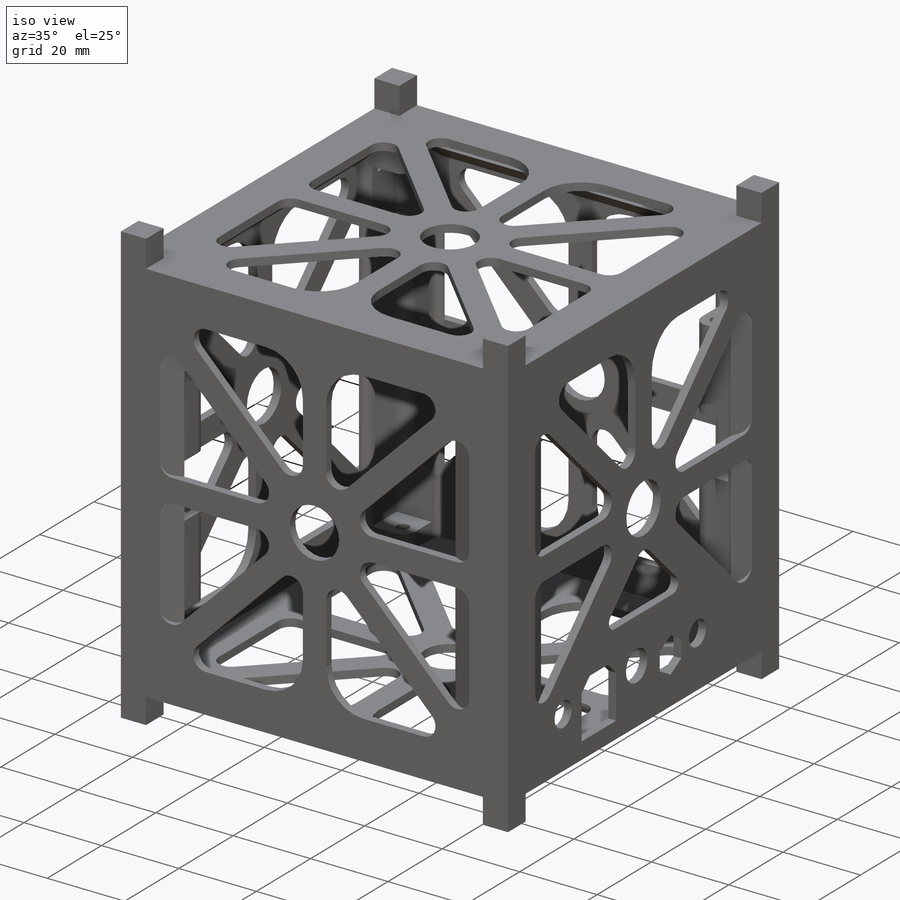
[diagram: iso view]
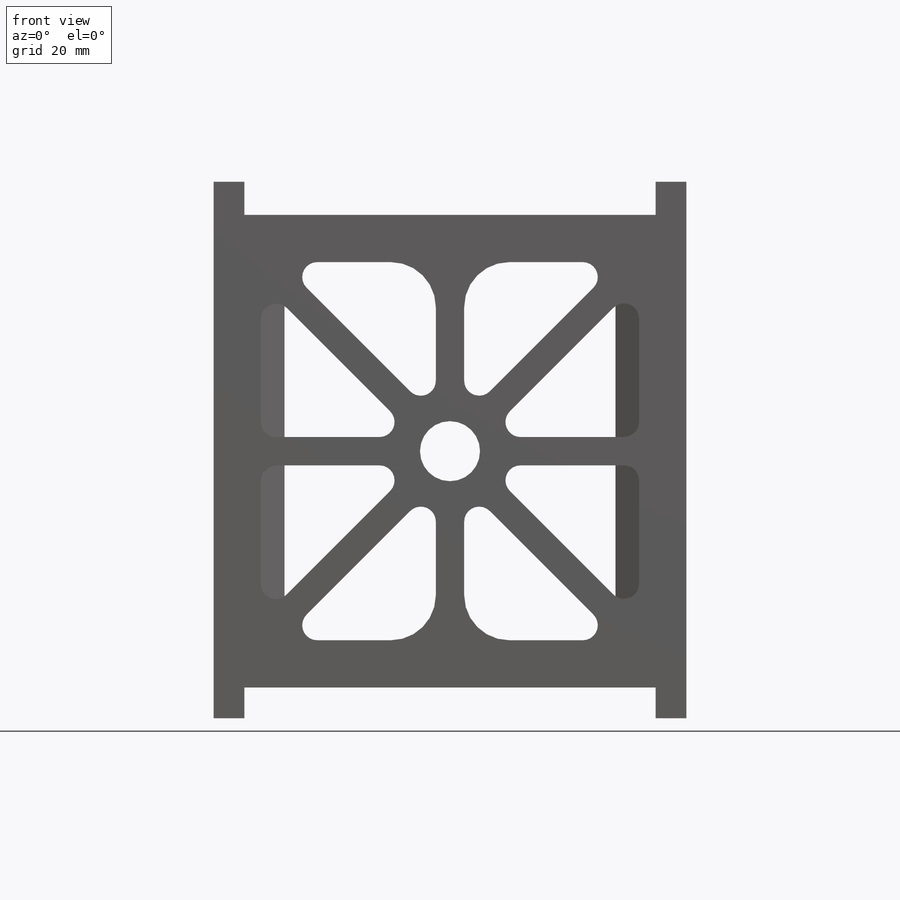
[diagram: front view]
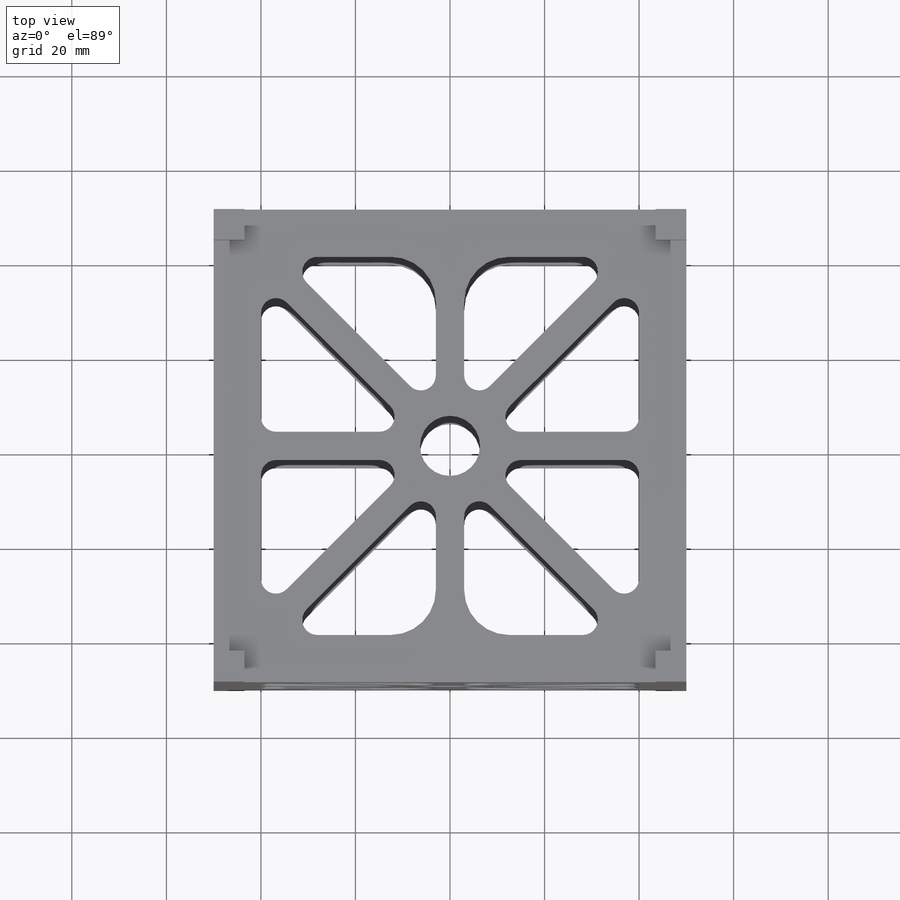
[diagram: top view]
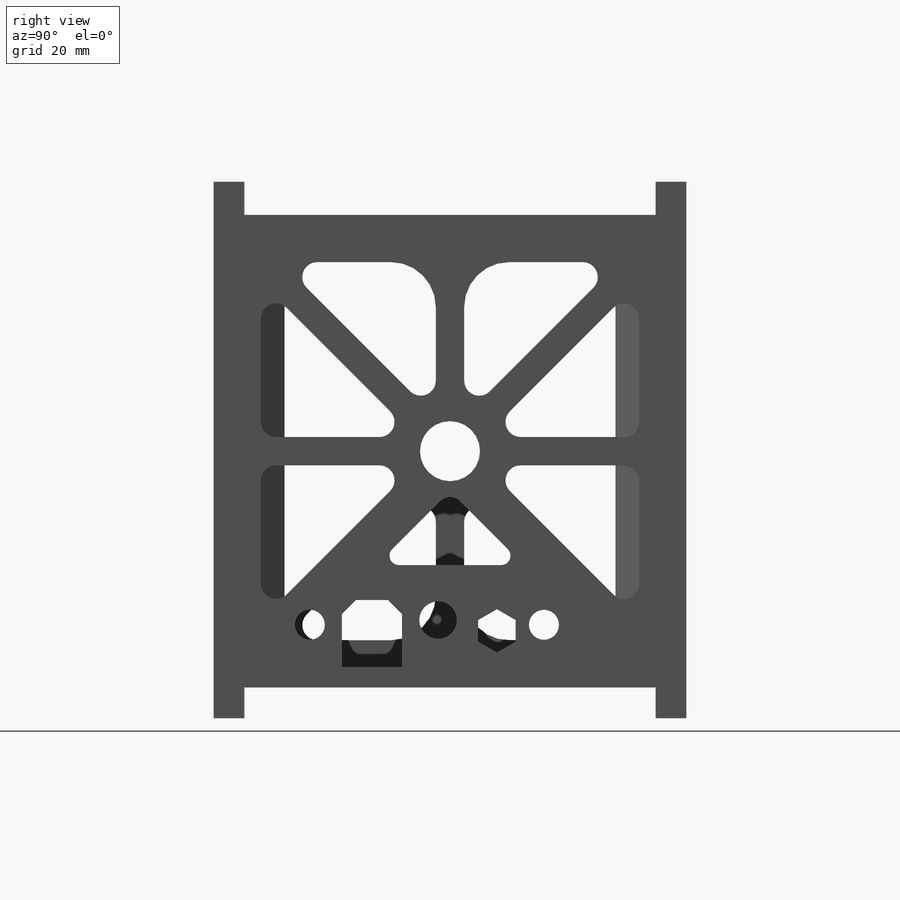
[diagram: right view]
SOLIDWORKS PART (.sldprt)
format: sldprt  version: not decoded by parser v0  size: 1,337,344 bytes
history: native  units: mm
features: sketch x14, cut_extrude x8, extrude x5, mirror x5, plane x3, material x1, pattern_linear x1 (+18 scaffold rows collapsed; 6 parser-record rows omitted)
feature tree (61):
  scaffold x18  (default folders/planes/origin — collapsed)
  material  "Material <not specified>"
  parser-record x6  (decoder bookkeeping rows leaked as tree rows — omitted from the tree; the rows remain in map.json)
  sketch  "Sketch1"  dims[D1=100.0mm D2=100.0mm]
  extrude  "Boss-Extrude1"  Depth=100mm
  sketch  "Sketch2"  dims[D1=6.5mm]
  extrude  "Boss-Extrude2"  Depth=57mm
  plane  "Plane1"  Offset=2mm
  sketch  "Sketch4"  dims[D1=2.0mm D2=2.0mm D3=2.0mm D4=2.0mm]
  cut_extrude  "Cut-Extrude1"  Depth=96mm
  plane  "Plane3"
  sketch  "Sketch6"  dims[D6=3.0mm D7=3.0mm D8=13.0mm D1=3.0mm D2=3.0mm D3=3.0mm D4=3.0mm D5=3.0mm]
  cut_extrude  "Cut-Extrude4"  [1 undecoded]
  sketch  "Sketch5"  dims[c1.D1=5.0mm c1.D8=5.0mm c1.D9=5.0mm c1.D10=5.0mm c1.D11=5.0mm c1.D6=3.0mm c1.D7=3.0mm c2.D8=13.0mm c2.D6=3.0mm c2.D7=2.0mm c2.D1=3.0mm c2.D9=~51.657194mm c2.D10=~48.342806mm c3.D1=5.0mm c3.D2=5.0mm c3.D3=5.0mm c3.D4=10.0mm c3.D5=10.0mm c3.D6=10.0mm c3.D7=10.0mm c4.D2=3.0mm c4.D3=3.0mm c5.D2=6.0mm c5.D3=6.0mm]
  cut_extrude  "Cut-Extrude2"  [1 undecoded]
  mirror  "Mirror3"
  plane  "Plane5"
  mirror  "Mirror4"
  sketch  "Sketch7"  dims[c1.D3=3.0mm c1.D1=2.0mm c1.D6=3.0mm c1.D7=2.0mm c2.D6=2.0mm c2.D7=2.0mm c2.D1=8.255mm c2.D2=96.0mm c3.D1=8.25mm c3.D2=11.0mm c3.D4=11.0mm c3.D5=11.0mm c3.D8=2.0mm c3.D9=2.0mm c3.D10=7.5mm c4.D4=8.25mm c4.D2=11.0mm c4.D3=6.0mm c5.D4=6.0mm c5.D2=11.0mm c5.D10=8.0mm c5.D11=8.0mm c5.D12=13.0mm c6.D12=13.0mm]
  extrude  "Boss-Extrude3"  [1 undecoded]
  sketch  "Sketch8"  dims[c1.D8=3.0mm c1.D9=3.0mm c1.D10=3.0mm c2.D8=3.0mm c2.D9=3.0mm c2.D2=2.0mm c2.D4=100.0mm c2.D5=96.0mm c2.D6=94.0mm c2.D10=1.5mm c3.D9=~1.244565mm c3.D10=3.5mm c3.D11=~3.88004mm c3.D6=2.0mm c3.D7=2.0mm c4.D9=2.0mm c4.D1=0.0mm c4.D3=2.0mm c4.D7=5.0mm c5.D9=5.0mm]
  sketch  "Sketch13"  dims[D1=3.0mm D2=2.0mm D3=2.0mm D4=2.0mm]
  sketch  "Sketch10"  dims[D1=3.0mm D2=2.0mm D3=2.0mm D4=2.0mm]
  cut_extrude  "Cut-Extrude5"  Depth=2mm
  cut_extrude  "Cut-Extrude6"  Depth=12mm
  cut_extrude  "Cut-Extrude7"  [1 undecoded]
  sketch  "Sketch13<3>"  dims[D1=14.0mm D19=80.0mm]
  sketch  "Sketch15"  dims[c1.D1=~22.814968mm c2.D1=45.0deg c2.D2=2.0mm]
  extrude  "Boss-Extrude4"  [1 undecoded]
  mirror  "Mirror5"
  mirror  "Mirror6"
  mirror  "Mirror7"
  sketch  "Sketch14"  dims[D5=8.0mm D6=8.0mm D7=8.0mm D8=8.0mm D1=4.0mm D2=4.0mm D3=4.0mm D4=4.0mm]
  cut_extrude  "Cut-Extrude11"  Depth=3mm
  sketch  "Sketch16"
  extrude  "Boss-Extrude5"  [1 undecoded]
  sketch  "Sketch18"
  cut_extrude  "Cut-Extrude13"  [1 undecoded]
  pattern_linear  "LPattern1"  Count1=3 Count2=1 Spacing1=35mm Spacing2=10mm
decode coverage: 19 of 33 modeling features carry decoded parameters
note: ~ marks probable driven/reference dimensions
note: 7 parameter values undecoded
summary: no parameter record found for 7 features
note: suppression state not decoded; provenance and decode notes live in map.json
